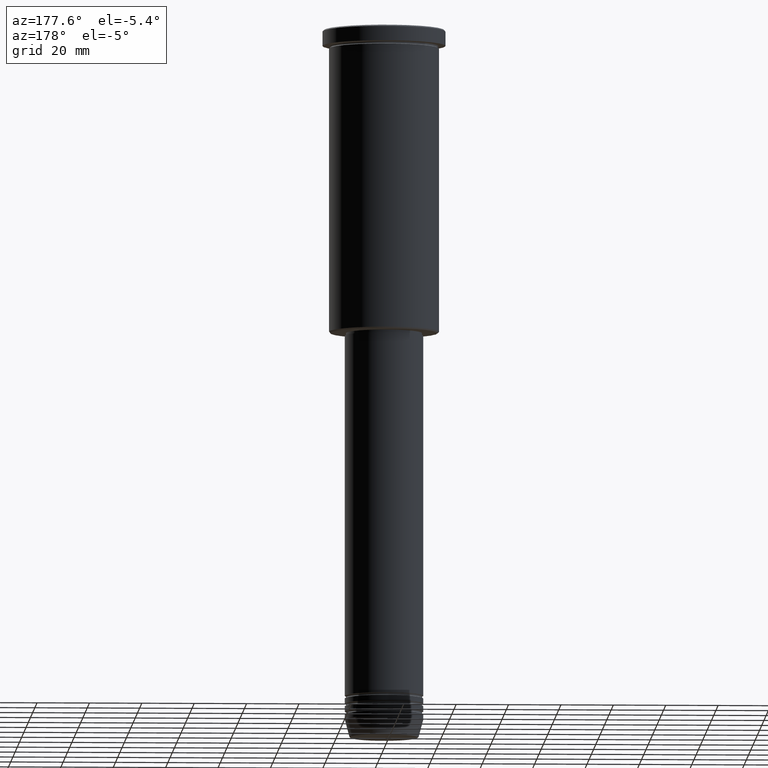
[diagram: clean part render]
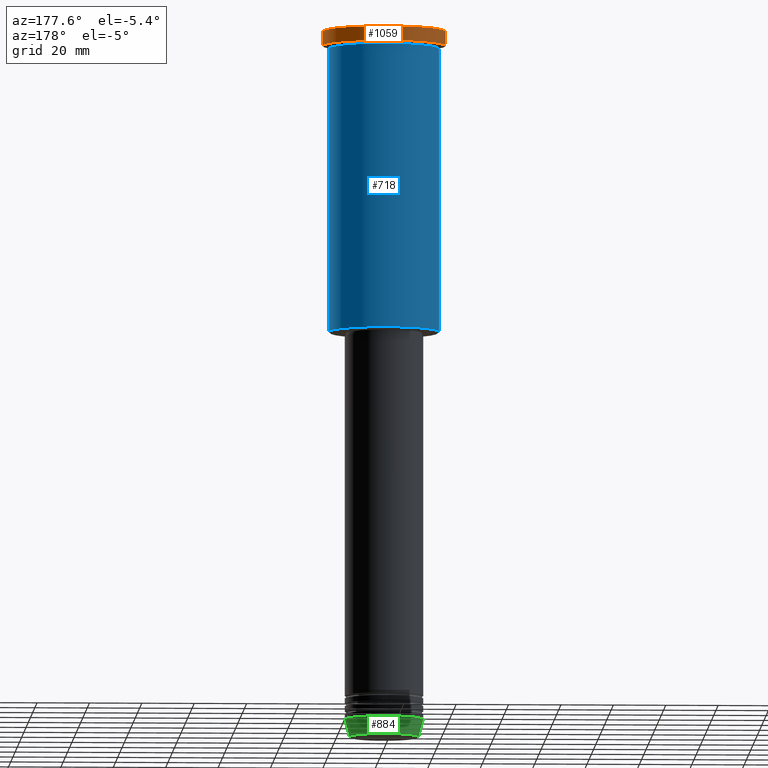
[diagram: same view with three faces highlighted in distinct colors, each labeled with its STEP entity id]
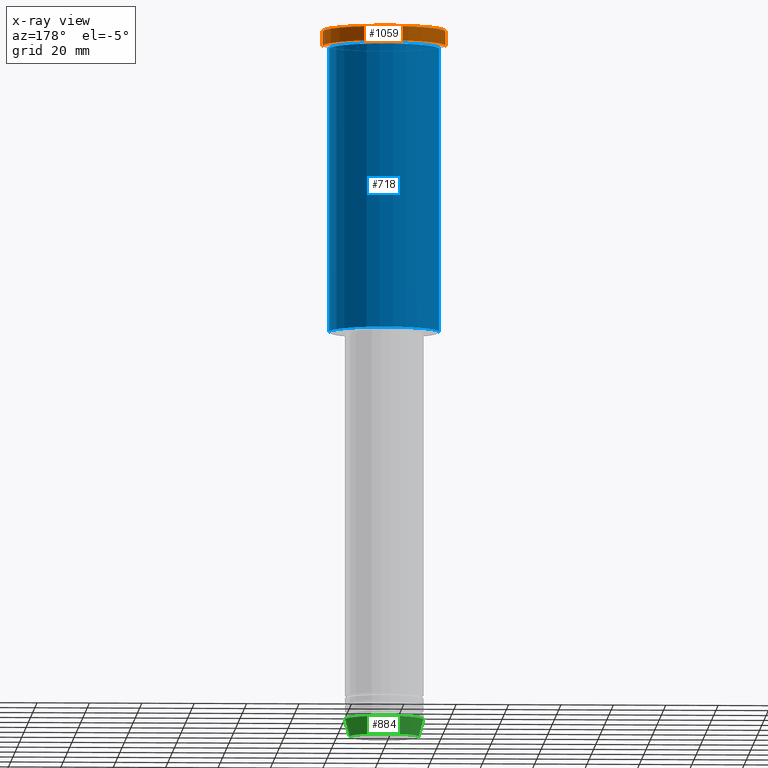
[diagram: x-ray of the same camera — body ghosted, the three highlighted faces saturated]
A machine part, auxiliary view with three faces highlighted in distinct colors.
The next image is the same camera in x-ray (body ghosted, the three faces saturated) — at least one of them is partly hidden behind the body in this view.
Their STEP definitions:

[orange] entity #1059 — the highlighted cylindrical surface (partial cylindrical patch) has radius 23.5 mm, axis along (-0, -0, 1).
#4 = VERTEX_POINT ( 'NONE', #425 ) ;
#9 = CARTESIAN_POINT ( 'NONE',  ( 23.50000000000000000, 0.000000000000000000, -0.5000000000000004441 ) ) ;
#22 = CARTESIAN_POINT ( 'NONE',  ( 0.000000000000000000, 0.000000000000000000, -5.999999999999994671 ) ) ;
#49 = CARTESIAN_POINT ( 'NONE',  ( 0.000000000000000000, 0.000000000000000000, 0.000000000000000000 ) ) ;
#65 = EDGE_CURVE ( 'NONE', #4, #1100, #1173, .T. ) ;
#102 = ORIENTED_EDGE ( 'NONE', *, *, #875, .T. ) ;
#119 = DIRECTION ( 'NONE',  ( 1.000000000000000000, 0.000000000000000000, 0.000000000000000000 ) ) ;
#126 = AXIS2_PLACEMENT_3D ( 'NONE', #717, #272, #636 ) ;
#167 = CARTESIAN_POINT ( 'NONE',  ( 23.50000000000000000, 0.000000000000000000, -5.999999999999994671 ) ) ;
#176 = AXIS2_PLACEMENT_3D ( 'NONE', #22, #200, #119 ) ;
#178 = CARTESIAN_POINT ( 'NONE',  ( -23.50000000000000000, 2.877919977996280320E-15, -5.999999999999994671 ) ) ;
#199 = ORIENTED_EDGE ( 'NONE', *, *, #65, .T. ) ;
#200 = DIRECTION ( 'NONE',  ( -0.000000000000000000, -0.000000000000000000, 1.000000000000000000 ) ) ;
#214 = ORIENTED_EDGE ( 'NONE', *, *, #901, .T. ) ;
#244 = LINE ( 'NONE', #880, #741 ) ;
#272 = DIRECTION ( 'NONE',  ( 0.000000000000000000, 0.000000000000000000, -1.000000000000000000 ) ) ;
#325 = DIRECTION ( 'NONE',  ( 1.000000000000000000, 0.000000000000000000, 0.000000000000000000 ) ) ;
#331 = FACE_OUTER_BOUND ( 'NONE', #784, .T. ) ;
#416 = DIRECTION ( 'NONE',  ( -0.000000000000000000, -0.000000000000000000, 1.000000000000000000 ) ) ;
#419 = CIRCLE ( 'NONE', #176, 23.50000000000000000 ) ;
#425 = CARTESIAN_POINT ( 'NONE',  ( -23.50000000000000000, 2.877919977996280320E-15, -0.5000000000000004441 ) ) ;
#492 = VERTEX_POINT ( 'NONE', #167 ) ;
#541 = DIRECTION ( 'NONE',  ( -0.000000000000000000, -0.000000000000000000, 1.000000000000000000 ) ) ;
#636 = DIRECTION ( 'NONE',  ( 1.000000000000000000, 0.000000000000000000, 0.000000000000000000 ) ) ;
#717 = CARTESIAN_POINT ( 'NONE',  ( 0.000000000000000000, 0.000000000000000000, -0.5000000000000004441 ) ) ;
#741 = VECTOR ( 'NONE', #1154, 1000.000000000000000 ) ;
#784 = EDGE_LOOP ( 'NONE', ( #214, #102, #199, #1144 ) ) ;
#844 = VERTEX_POINT ( 'NONE', #178 ) ;
#854 = AXIS2_PLACEMENT_3D ( 'NONE', #49, #416, #325 ) ;
#875 = EDGE_CURVE ( 'NONE', #844, #4, #1180, .T. ) ;
#880 = CARTESIAN_POINT ( 'NONE',  ( 23.50000000000000000, 0.000000000000000000, 0.000000000000000000 ) ) ;
#901 = EDGE_CURVE ( 'NONE', #492, #844, #419, .T. ) ;
#1004 = VECTOR ( 'NONE', #541, 1000.000000000000000 ) ;
#1044 = EDGE_CURVE ( 'NONE', #492, #1100, #244, .T. ) ;
#1059 = ADVANCED_FACE ( 'NONE', ( #331 ), #1131, .T. ) ;
#1079 = CARTESIAN_POINT ( 'NONE',  ( -23.50000000000000000, 2.877919977996280320E-15, 0.000000000000000000 ) ) ;
#1100 = VERTEX_POINT ( 'NONE', #9 ) ;
#1131 = CYLINDRICAL_SURFACE ( 'NONE', #854, 23.50000000000000000 ) ;
#1144 = ORIENTED_EDGE ( 'NONE', *, *, #1044, .F. ) ;
#1154 = DIRECTION ( 'NONE',  ( -0.000000000000000000, -0.000000000000000000, 1.000000000000000000 ) ) ;
#1173 = CIRCLE ( 'NONE', #126, 23.50000000000000000 ) ;
#1180 = LINE ( 'NONE', #1079, #1004 ) ;

[blue] entity #718 — the highlighted cylindrical surface (partial cylindrical patch) has radius 21 mm, axis along (-0, -0, 1).
#32 = DIRECTION ( 'NONE',  ( 1.000000000000000000, 0.000000000000000000, 0.000000000000000000 ) ) ;
#79 = EDGE_CURVE ( 'NONE', #1045, #1121, #183, .T. ) ;
#101 = AXIS2_PLACEMENT_3D ( 'NONE', #168, #348, #529 ) ;
#147 = AXIS2_PLACEMENT_3D ( 'NONE', #1115, #211, #32 ) ;
#168 = CARTESIAN_POINT ( 'NONE',  ( 0.000000000000000000, 0.000000000000000000, 0.000000000000000000 ) ) ;
#183 = LINE ( 'NONE', #1181, #1133 ) ;
#185 = EDGE_CURVE ( 'NONE', #1121, #420, #585, .T. ) ;
#211 = DIRECTION ( 'NONE',  ( -0.000000000000000000, -0.000000000000000000, 1.000000000000000000 ) ) ;
#277 = ORIENTED_EDGE ( 'NONE', *, *, #630, .T. ) ;
#343 = FACE_OUTER_BOUND ( 'NONE', #376, .T. ) ;
#348 = DIRECTION ( 'NONE',  ( -0.000000000000000000, -0.000000000000000000, 1.000000000000000000 ) ) ;
#376 = EDGE_LOOP ( 'NONE', ( #395, #277, #599, #761 ) ) ;
#395 = ORIENTED_EDGE ( 'NONE', *, *, #979, .T. ) ;
#413 = CARTESIAN_POINT ( 'NONE',  ( -21.00000000000000000, 2.571758278209441661E-15, 0.000000000000000000 ) ) ;
#420 = VERTEX_POINT ( 'NONE', #1082 ) ;
#495 = CIRCLE ( 'NONE', #1160, 21.00000000000000000 ) ;
#505 = CARTESIAN_POINT ( 'NONE',  ( 21.00000000000000000, 0.000000000000000000, -115.4999999999999432 ) ) ;
#515 = LINE ( 'NONE', #413, #685 ) ;
#529 = DIRECTION ( 'NONE',  ( 1.000000000000000000, 0.000000000000000000, 0.000000000000000000 ) ) ;
#556 = DIRECTION ( 'NONE',  ( -0.000000000000000000, -0.000000000000000000, 1.000000000000000000 ) ) ;
#585 = CIRCLE ( 'NONE', #147, 21.00000000000000000 ) ;
#596 = DIRECTION ( 'NONE',  ( -0.000000000000000000, -0.000000000000000000, 1.000000000000000000 ) ) ;
#599 = ORIENTED_EDGE ( 'NONE', *, *, #185, .F. ) ;
#618 = CYLINDRICAL_SURFACE ( 'NONE', #101, 21.00000000000000000 ) ;
#630 = EDGE_CURVE ( 'NONE', #749, #420, #515, .T. ) ;
#685 = VECTOR ( 'NONE', #870, 1000.000000000000000 ) ;
#718 = ADVANCED_FACE ( 'NONE', ( #343 ), #618, .T. ) ;
#749 = VERTEX_POINT ( 'NONE', #915 ) ;
#761 = ORIENTED_EDGE ( 'NONE', *, *, #79, .F. ) ;
#859 = DIRECTION ( 'NONE',  ( -1.000000000000000000, 0.000000000000000000, 0.000000000000000000 ) ) ;
#870 = DIRECTION ( 'NONE',  ( -0.000000000000000000, -0.000000000000000000, 1.000000000000000000 ) ) ;
#915 = CARTESIAN_POINT ( 'NONE',  ( -21.00000000000000000, 2.571758278209441661E-15, -115.4999999999999432 ) ) ;
#979 = EDGE_CURVE ( 'NONE', #1045, #749, #495, .T. ) ;
#1021 = CARTESIAN_POINT ( 'NONE',  ( 21.00000000000000000, 0.000000000000000000, -6.999999999999994671 ) ) ;
#1045 = VERTEX_POINT ( 'NONE', #505 ) ;
#1082 = CARTESIAN_POINT ( 'NONE',  ( -21.00000000000000000, 2.571758278209441661E-15, -6.999999999999994671 ) ) ;
#1115 = CARTESIAN_POINT ( 'NONE',  ( 0.000000000000000000, 0.000000000000000000, -6.999999999999994671 ) ) ;
#1121 = VERTEX_POINT ( 'NONE', #1021 ) ;
#1133 = VECTOR ( 'NONE', #556, 1000.000000000000000 ) ;
#1150 = CARTESIAN_POINT ( 'NONE',  ( 0.000000000000000000, 0.000000000000000000, -115.4999999999999432 ) ) ;
#1160 = AXIS2_PLACEMENT_3D ( 'NONE', #1150, #596, #859 ) ;
#1181 = CARTESIAN_POINT ( 'NONE',  ( 21.00000000000000000, 0.000000000000000000, 0.000000000000000000 ) ) ;

[green] entity #884 — the highlighted conical surface has half-angle 15 deg.
#25 = DIRECTION ( 'NONE',  ( -0.000000000000000000, -0.000000000000000000, 1.000000000000000000 ) ) ;
#58 = ORIENTED_EDGE ( 'NONE', *, *, #500, .T. ) ;
#98 = CARTESIAN_POINT ( 'NONE',  ( -13.22365507213718772, 1.728200442216588386E-15, -270.6294095225513274 ) ) ;
#107 = DIRECTION ( 'NONE',  ( 1.000000000000000000, 0.000000000000000000, 0.000000000000000000 ) ) ;
#118 = ORIENTED_EDGE ( 'NONE', *, *, #960, .T. ) ;
#127 = CARTESIAN_POINT ( 'NONE',  ( 15.00000000000000000, 0.000000000000000000, -264.0000000000000000 ) ) ;
#137 = DIRECTION ( 'NONE',  ( 1.000000000000000000, 0.000000000000000000, 0.000000000000000000 ) ) ;
#171 = CARTESIAN_POINT ( 'NONE',  ( -15.00000000000000000, 1.836970198721029589E-15, -264.0000000000000000 ) ) ;
#182 = CARTESIAN_POINT ( 'NONE',  ( 0.000000000000000000, 0.000000000000000000, -264.0000000000000000 ) ) ;
#184 = EDGE_CURVE ( 'NONE', #699, #911, #798, .T. ) ;
#188 = AXIS2_PLACEMENT_3D ( 'NONE', #182, #362, #734 ) ;
#227 = VERTEX_POINT ( 'NONE', #98 ) ;
#228 = DIRECTION ( 'NONE',  ( -0.000000000000000000, -0.000000000000000000, 1.000000000000000000 ) ) ;
#260 = CARTESIAN_POINT ( 'NONE',  ( 15.00000000000000000, 0.000000000000000000, -264.0000000000000000 ) ) ;
#347 = DIRECTION ( 'NONE',  ( -0.2588190451025213501, 3.169619151431772337E-17, 0.9659258262890680902 ) ) ;
#362 = DIRECTION ( 'NONE',  ( -0.000000000000000000, -0.000000000000000000, 1.000000000000000000 ) ) ;
#435 = CONICAL_SURFACE ( 'NONE', #188, 15.00000000000000000, 0.2617993877991500740 ) ;
#453 = CIRCLE ( 'NONE', #988, 13.22365507213718772 ) ;
#468 = AXIS2_PLACEMENT_3D ( 'NONE', #771, #25, #107 ) ;
#500 = EDGE_CURVE ( 'NONE', #227, #911, #797, .T. ) ;
#563 = CARTESIAN_POINT ( 'NONE',  ( -15.00000000000000000, 1.836970198721029589E-15, -264.0000000000000000 ) ) ;
#663 = EDGE_CURVE ( 'NONE', #1146, #699, #1116, .T. ) ;
#699 = VERTEX_POINT ( 'NONE', #260 ) ;
#701 = ORIENTED_EDGE ( 'NONE', *, *, #663, .F. ) ;
#708 = CARTESIAN_POINT ( 'NONE',  ( 0.000000000000000000, 0.000000000000000000, -270.6294095225513274 ) ) ;
#724 = VECTOR ( 'NONE', #347, 1000.000000000000000 ) ;
#734 = DIRECTION ( 'NONE',  ( 1.000000000000000000, 0.000000000000000000, 0.000000000000000000 ) ) ;
#771 = CARTESIAN_POINT ( 'NONE',  ( 0.000000000000000000, 0.000000000000000000, -264.0000000000000000 ) ) ;
#776 = DIRECTION ( 'NONE',  ( 0.2588190451025213501, 0.000000000000000000, 0.9659258262890680902 ) ) ;
#797 = LINE ( 'NONE', #171, #724 ) ;
#798 = CIRCLE ( 'NONE', #468, 15.00000000000000000 ) ;
#826 = FACE_OUTER_BOUND ( 'NONE', #963, .T. ) ;
#840 = ORIENTED_EDGE ( 'NONE', *, *, #184, .F. ) ;
#884 = ADVANCED_FACE ( 'NONE', ( #826 ), #435, .T. ) ;
#911 = VERTEX_POINT ( 'NONE', #563 ) ;
#921 = VECTOR ( 'NONE', #776, 1000.000000000000000 ) ;
#960 = EDGE_CURVE ( 'NONE', #1146, #227, #453, .T. ) ;
#963 = EDGE_LOOP ( 'NONE', ( #118, #58, #840, #701 ) ) ;
#988 = AXIS2_PLACEMENT_3D ( 'NONE', #708, #228, #137 ) ;
#1095 = CARTESIAN_POINT ( 'NONE',  ( 13.22365507213718772, 0.000000000000000000, -270.6294095225513274 ) ) ;
#1116 = LINE ( 'NONE', #127, #921 ) ;
#1146 = VERTEX_POINT ( 'NONE', #1095 ) ;